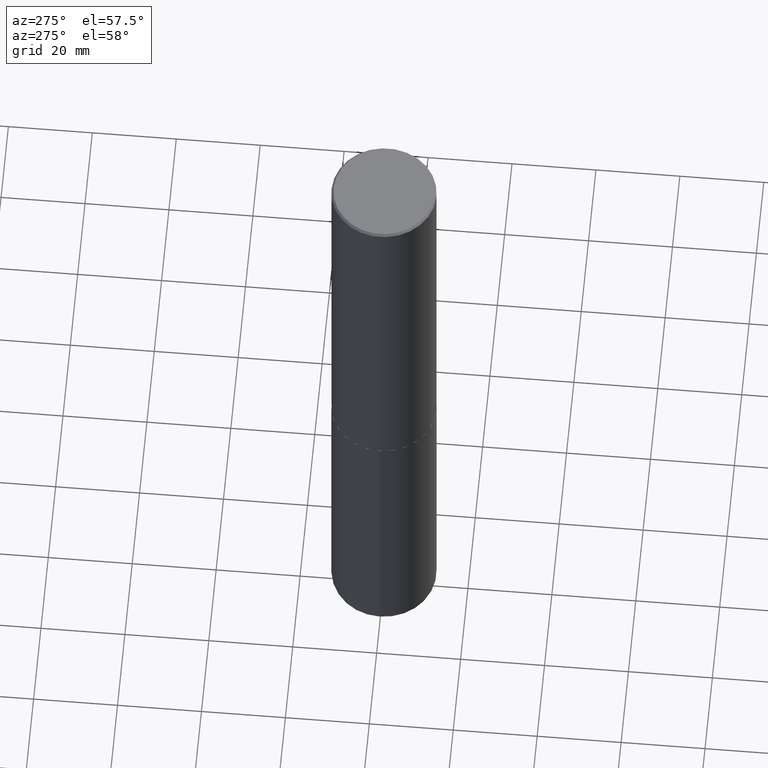
[diagram: clean part render]
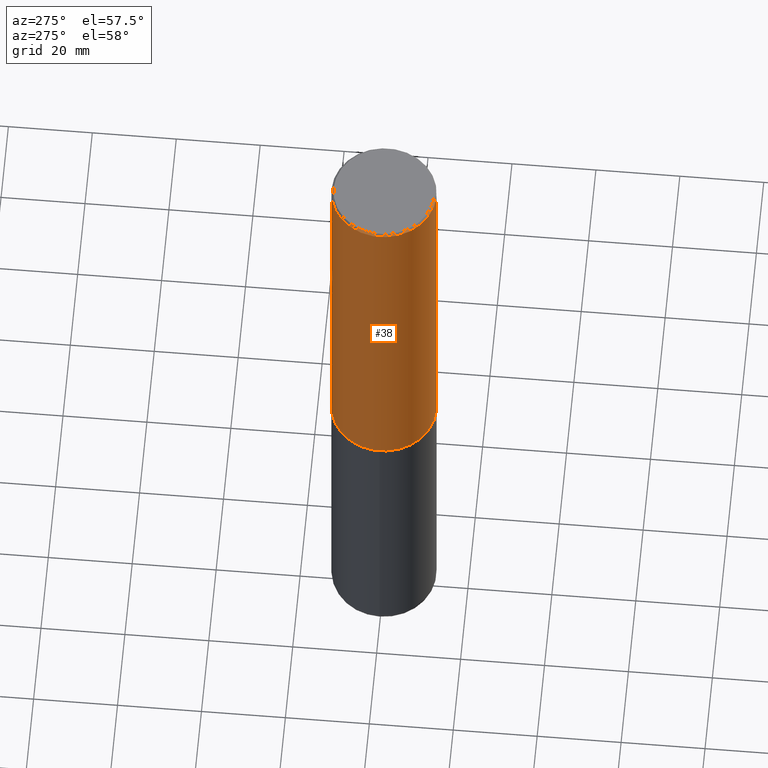
[diagram: same view with one face highlighted and labeled with its STEP entity id]
A machine part, auxiliary view. The second image highlights one B-rep face of the part: STEP entity #38.
In plain terms, the highlighted cylindrical surface (partial cylindrical patch) has radius 12.5006 mm, axis along (-0, 0, 1).
Its self-contained STEP definition (entity closure, byte-faithful):
#22 = CARTESIAN_POINT ( 'NONE',  ( 9.145751084314172604E-29, -1.305227886897706845E-14, -3.739100000000000534 ) ) ;
#24 = ORIENTED_EDGE ( 'NONE', *, *, #181, .F. ) ;
#31 = DIRECTION ( 'NONE',  ( -2.445976594451651952E-29, 3.490754157143982552E-15, 1.000000000000000000 ) ) ;
#33 = CARTESIAN_POINT ( 'NONE',  ( -3.436665081823207030E-15, -0.4921500000000134101, -3.739099999999998758 ) ) ;
#38 = ADVANCED_FACE ( 'NONE', ( #163 ), #295, .T. ) ;
#49 = VECTOR ( 'NONE', #322, 39.37007874015748143 ) ;
#63 = CARTESIAN_POINT ( 'NONE',  ( 4.891953188903329688E-31, -6.981508314288001687E-17, -0.02000000000000010797 ) ) ;
#71 = LINE ( 'NONE', #194, #49 ) ;
#74 = DIRECTION ( 'NONE',  ( -6.982962677686265922E-15, -1.000000000000000000, 3.490754157143982552E-15 ) ) ;
#79 = VERTEX_POINT ( 'NONE', #290 ) ;
#101 = DIRECTION ( 'NONE',  ( -6.982962677686265922E-15, -1.000000000000000000, 3.486624039460257331E-15 ) ) ;
#129 = CIRCLE ( 'NONE', #240, 0.4921500000000003650 ) ;
#139 = VERTEX_POINT ( 'NONE', #33 ) ;
#163 = FACE_OUTER_BOUND ( 'NONE', #205, .T. ) ;
#177 = CARTESIAN_POINT ( 'NONE',  ( 3.496936074043333291E-15, 0.4921500000000000874, -1.717974658438411319E-15 ) ) ;
#181 = EDGE_CURVE ( 'NONE', #79, #301, #260, .T. ) ;
#194 = CARTESIAN_POINT ( 'NONE',  ( -3.436665081823296565E-15, -0.4921500000000000874, 1.717974658438411319E-15 ) ) ;
#205 = EDGE_LOOP ( 'NONE', ( #387, #246, #238, #24 ) ) ;
#215 = DIRECTION ( 'NONE',  ( -2.445976594451651952E-29, 3.490754157143982552E-15, 1.000000000000000000 ) ) ;
#228 = EDGE_CURVE ( 'NONE', #139, #301, #71, .T. ) ;
#229 = CARTESIAN_POINT ( 'NONE',  ( 0.000000000000000000, 0.000000000000000000, 0.000000000000000000 ) ) ;
#238 = ORIENTED_EDGE ( 'NONE', *, *, #228, .T. ) ;
#240 = AXIS2_PLACEMENT_3D ( 'NONE', #22, #215, #308 ) ;
#246 = ORIENTED_EDGE ( 'NONE', *, *, #339, .T. ) ;
#248 = LINE ( 'NONE', #177, #283 ) ;
#260 = CIRCLE ( 'NONE', #307, 0.4921499999999999209 ) ;
#282 = AXIS2_PLACEMENT_3D ( 'NONE', #229, #31, #74 ) ;
#283 = VECTOR ( 'NONE', #305, 39.37007874015748143 ) ;
#290 = CARTESIAN_POINT ( 'NONE',  ( 3.436665081823295777E-15, 0.4921499999999998098, -0.02000000000000182188 ) ) ;
#295 = CYLINDRICAL_SURFACE ( 'NONE', #282, 0.4921500000000000874 ) ;
#299 = VERTEX_POINT ( 'NONE', #401 ) ;
#301 = VERTEX_POINT ( 'NONE', #406 ) ;
#305 = DIRECTION ( 'NONE',  ( -2.445976594451651672E-29, 3.490754157143982552E-15, 1.000000000000000000 ) ) ;
#307 = AXIS2_PLACEMENT_3D ( 'NONE', #63, #351, #101 ) ;
#308 = DIRECTION ( 'NONE',  ( -6.982962677686265922E-15, -1.000000000000000000, 3.330506545156063496E-15 ) ) ;
#309 = EDGE_CURVE ( 'NONE', #299, #79, #248, .T. ) ;
#322 = DIRECTION ( 'NONE',  ( -2.445976594451651672E-29, 3.490754157143982552E-15, 1.000000000000000000 ) ) ;
#339 = EDGE_CURVE ( 'NONE', #299, #139, #129, .T. ) ;
#351 = DIRECTION ( 'NONE',  ( -2.445976594451651952E-29, 3.490754157143982552E-15, 1.000000000000000000 ) ) ;
#387 = ORIENTED_EDGE ( 'NONE', *, *, #309, .F. ) ;
#401 = CARTESIAN_POINT ( 'NONE',  ( 3.496936074043380229E-15, 0.4921499999999873198, -3.739100000000002311 ) ) ;
#406 = CARTESIAN_POINT ( 'NONE',  ( -3.376394089603257868E-15, -0.4921499999999999764, -0.01999999999999839059 ) ) ;